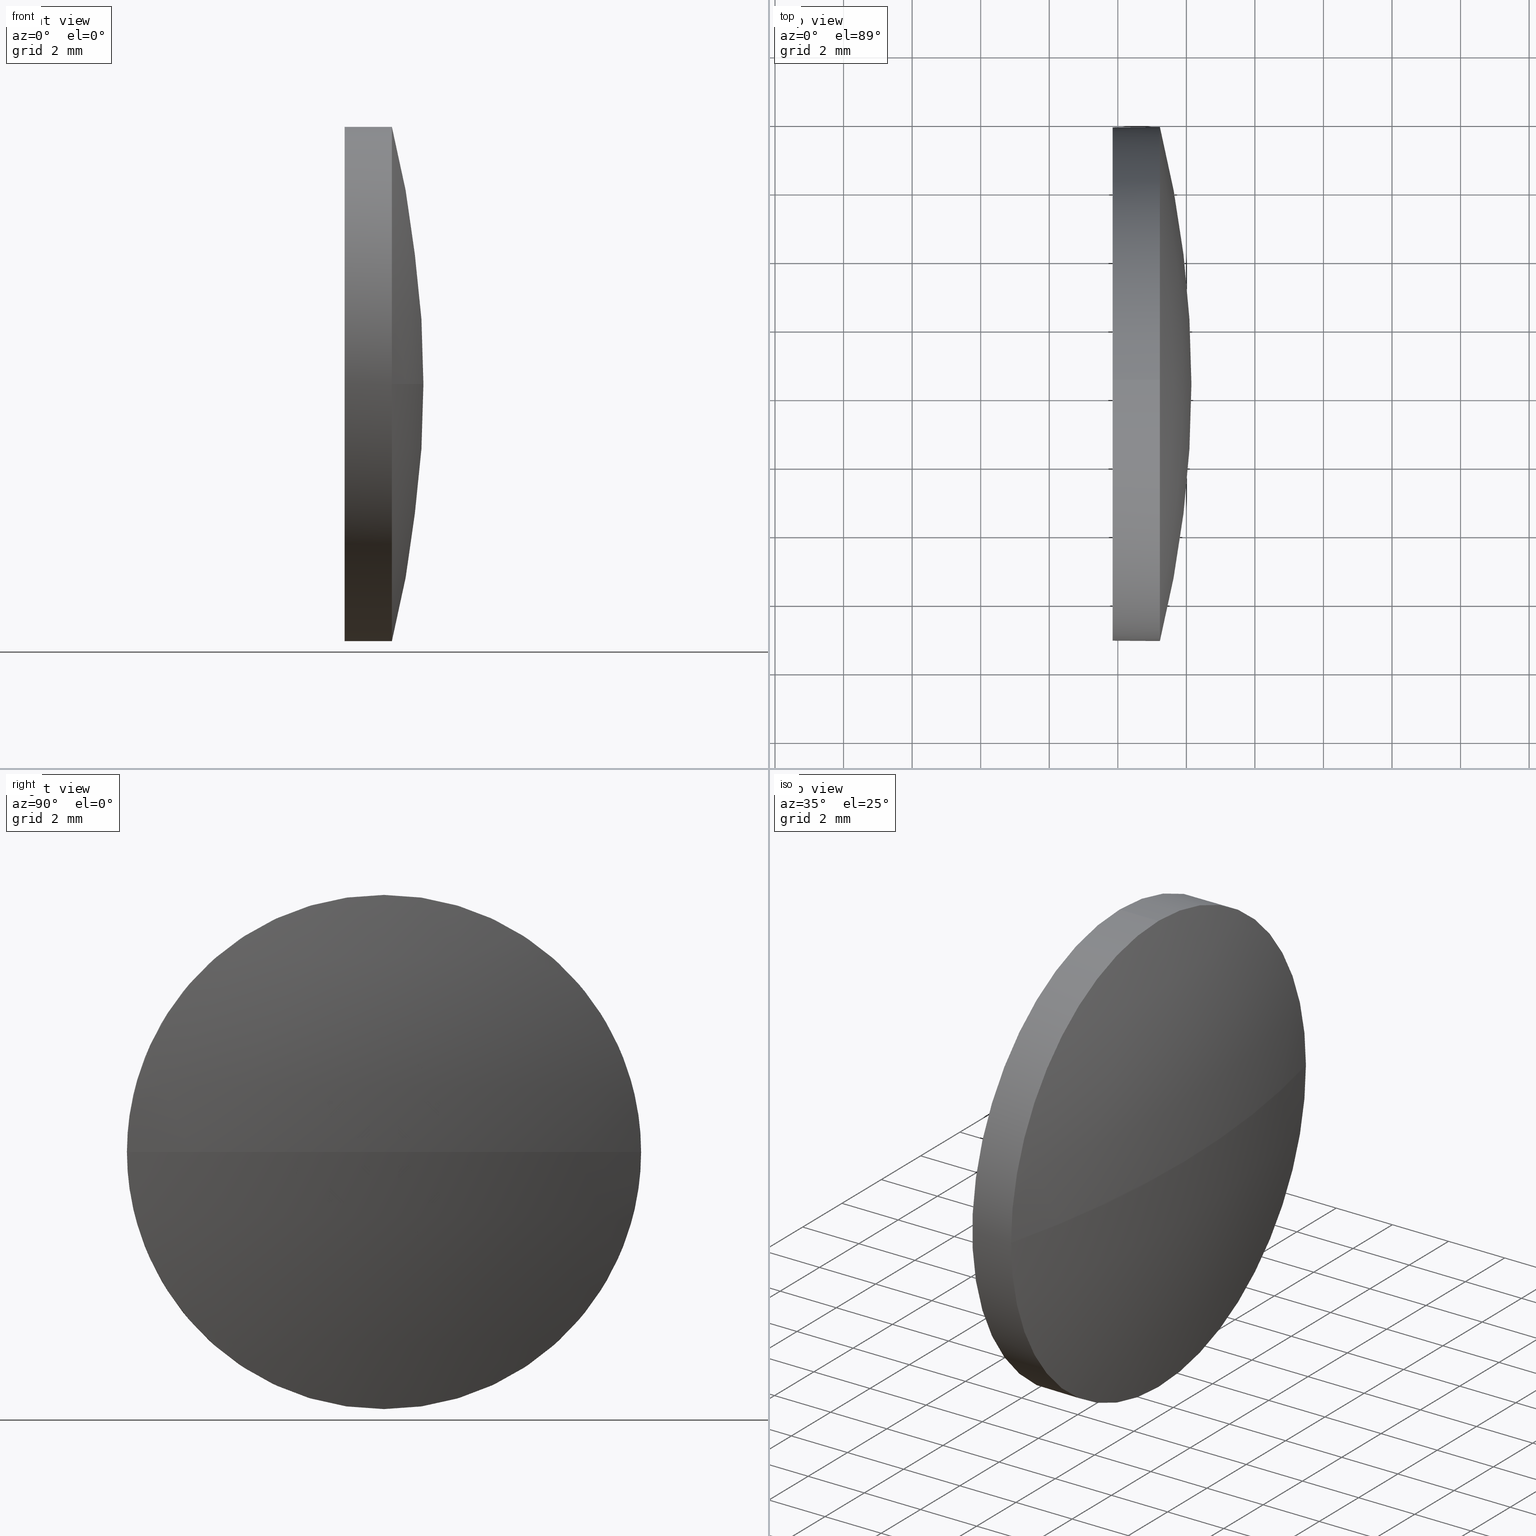
[diagram: canonical four-view strip — front | top / right | iso, engineering-drawing reading convention]
A machine part, canonical four-view strip (front | top / right | iso — engineering-drawing reading convention). The complete STEP part file that produces these views, byte-faithful:
ISO-10303-21;
HEADER;
FILE_DESCRIPTION (( 'STEP AP214' ),
    '1' );
FILE_NAME ('100196.STEP',
    '2019-05-22T02:11:12',
    ( '' ),
    ( '' ),
    'SwSTEP 2.0',
    'SolidWorks 2016',
    '' );
FILE_SCHEMA (( 'AUTOMOTIVE_DESIGN' ));
ENDSEC;

DATA;
#1 = CIRCLE ( 'NONE', #30, 31.03065217391317500 ) ;
#2 = ORIENTED_EDGE ( 'NONE', *, *, #118, .T. ) ;
#3 = PRODUCT_DEFINITION_CONTEXT ( 'detailed design', #74, 'design' ) ;
#4 = SURFACE_STYLE_FILL_AREA ( #48 ) ;
#5 = AXIS2_PLACEMENT_3D ( 'NONE', #13, #177, #39 ) ;
#6 =( NAMED_UNIT ( * ) PLANE_ANGLE_UNIT ( ) SI_UNIT ( $, .RADIAN. ) );
#7 = VERTEX_POINT ( 'NONE', #97 ) ;
#8 = ADVANCED_BREP_SHAPE_REPRESENTATION ( '100196', ( #180, #43 ), #139 ) ;
#9 = DIRECTION ( 'NONE',  ( -1.000000000000000000, -0.0000000000000000000, -0.0000000000000000000 ) ) ;
#10 =( LENGTH_UNIT ( ) NAMED_UNIT ( * ) SI_UNIT ( .MILLI., .METRE. ) );
#11 =( GEOMETRIC_REPRESENTATION_CONTEXT ( 3 ) GLOBAL_UNCERTAINTY_ASSIGNED_CONTEXT ( ( #66 ) ) GLOBAL_UNIT_ASSIGNED_CONTEXT ( ( #10, #185, #24 ) ) REPRESENTATION_CONTEXT ( 'NONE', 'WORKASPACE' ) );
#12 = VERTEX_POINT ( 'NONE', #99 ) ;
#13 = CARTESIAN_POINT ( 'NONE',  ( 559.8480030828359300, 70.35047557403802900, 0.0000000000000000000 ) ) ;
#14 = ORIENTED_EDGE ( 'NONE', *, *, #63, .T. ) ;
#15 = AXIS2_PLACEMENT_3D ( 'NONE', #34, #156, #154 ) ;
#16 = ORIENTED_EDGE ( 'NONE', *, *, #102, .F. ) ;
#17 = ORIENTED_EDGE ( 'NONE', *, *, #63, .F. ) ;
#18 = PRESENTATION_STYLE_ASSIGNMENT (( #181 ) ) ;
#19 = SURFACE_SIDE_STYLE ('',( #4 ) ) ;
#20 = AXIS2_PLACEMENT_3D ( 'NONE', #172, #114, #145 ) ;
#21 = DIRECTION ( 'NONE',  ( 0.0000000000000000000, 0.0000000000000000000, 1.000000000000000000 ) ) ;
#22 = DIRECTION ( 'NONE',  ( 0.0000000000000000000, 0.0000000000000000000, 1.000000000000000000 ) ) ;
#23 = AXIS2_PLACEMENT_3D ( 'NONE', #149, #175, #101 ) ;
#24 =( NAMED_UNIT ( * ) SI_UNIT ( $, .STERADIAN. ) SOLID_ANGLE_UNIT ( ) );
#25 = CARTESIAN_POINT ( 'NONE',  ( 531.1173509089227300, 70.35047557403817100, 0.0000000000000000000 ) ) ;
#26 = DIRECTION ( 'NONE',  ( -1.000000000000000000, -0.0000000000000000000, -0.0000000000000000000 ) ) ;
#27 = UNCERTAINTY_MEASURE_WITH_UNIT (LENGTH_MEASURE( 1.000000000000000100E-005 ), #107, 'distance_accuracy_value', 'NONE');
#28 = AXIS2_PLACEMENT_3D ( 'NONE', #150, #162, #105 ) ;
#29 =( LENGTH_UNIT ( ) NAMED_UNIT ( * ) SI_UNIT ( .MILLI., .METRE. ) );
#30 = AXIS2_PLACEMENT_3D ( 'NONE', #25, #173, #59 ) ;
#31 = LINE ( 'NONE', #120, #157 ) ;
#32 = CARTESIAN_POINT ( 'NONE',  ( 561.2280030828359300, 70.35047557403802900, 0.0000000000000000000 ) ) ;
#33 = DIRECTION ( 'NONE',  ( -1.000000000000000000, -0.0000000000000000000, -0.0000000000000000000 ) ) ;
#34 = CARTESIAN_POINT ( 'NONE',  ( 557.8048355037705100, 70.35047557403802900, 0.0000000000000000000 ) ) ;
#35 = CARTESIAN_POINT ( 'NONE',  ( 561.2280030828359300, 62.85047557403811400, 0.0000000000000000000 ) ) ;
#36 = CARTESIAN_POINT ( 'NONE',  ( 559.8480030828359300, 70.35047557403802900, 7.499999999999992900 ) ) ;
#37 = CIRCLE ( 'NONE', #28, 31.03065217391321100 ) ;
#38 = DIRECTION ( 'NONE',  ( 0.0000000000000000000, 0.0000000000000000000, 1.000000000000000000 ) ) ;
#39 = DIRECTION ( 'NONE',  ( 0.0000000000000000000, 0.0000000000000000000, 1.000000000000000000 ) ) ;
#40 = AXIS2_PLACEMENT_3D ( 'NONE', #42, #86, #38 ) ;
#41 = ORIENTED_EDGE ( 'NONE', *, *, #49, .T. ) ;
#42 = CARTESIAN_POINT ( 'NONE',  ( 561.2280030828359300, 70.35047557403802900, 0.0000000000000000000 ) ) ;
#43 = AXIS2_PLACEMENT_3D ( 'NONE', #75, #79, #93 ) ;
#44 = CIRCLE ( 'NONE', #5, 7.499999999999992900 ) ;
#45 = ADVANCED_FACE ( 'NONE', ( #92 ), #176, .T. ) ;
#46 = ORIENTED_EDGE ( 'NONE', *, *, #124, .T. ) ;
#47 = APPLICATION_PROTOCOL_DEFINITION ( 'draft international standard', 'automotive_design', 1998, #141 ) ;
#48 = FILL_AREA_STYLE ('',( #104 ) ) ;
#49 = EDGE_CURVE ( 'NONE', #57, #90, #131, .T. ) ;
#50 = ORIENTED_EDGE ( 'NONE', *, *, #49, .F. ) ;
#51 = PRESENTATION_LAYER_ASSIGNMENT (  '', '', ( #164 ) ) ;
#52 = VECTOR ( 'NONE', #183, 1000.000000000000000 ) ;
#53 = CARTESIAN_POINT ( 'NONE',  ( 559.8480030828359300, 70.35047557403802900, 0.0000000000000000000 ) ) ;
#54 = CARTESIAN_POINT ( 'NONE',  ( 557.8048355037705100, 70.35047557403802900, -7.499999999999992900 ) ) ;
#55 = PRODUCT_DEFINITION ( 'δ֪', '', #94, #3 ) ;
#56 = DIRECTION ( 'NONE',  ( 0.0000000000000000000, 0.0000000000000000000, 1.000000000000000000 ) ) ;
#57 = VERTEX_POINT ( 'NONE', #147 ) ;
#58 = CLOSED_SHELL ( 'NONE', ( #108, #45, #88, #62, #109 ) ) ;
#59 = DIRECTION ( 'NONE',  ( 0.0000000000000000000, -1.000000000000000000, -1.224646799147353200E-016 ) ) ;
#60 = ORIENTED_EDGE ( 'NONE', *, *, #68, .F. ) ;
#61 = COLOUR_RGB ( '',1.000000000000000000, 1.000000000000000000, 1.000000000000000000 ) ;
#62 = ADVANCED_FACE ( 'NONE', ( #167 ), #87, .T. ) ;
#63 = EDGE_CURVE ( 'NONE', #90, #98, #140, .T. ) ;
#64 = MECHANICAL_DESIGN_GEOMETRIC_PRESENTATION_REPRESENTATION (  '', ( #164 ), #11 ) ;
#65 = ORIENTED_EDGE ( 'NONE', *, *, #124, .F. ) ;
#66 = UNCERTAINTY_MEASURE_WITH_UNIT (LENGTH_MEASURE( 1.000000000000000100E-005 ), #10, 'distance_accuracy_value', 'NONE');
#67 = PRODUCT_RELATED_PRODUCT_CATEGORY ( 'part', '', ( #91 ) ) ;
#68 = EDGE_CURVE ( 'NONE', #96, #7, #143, .T. ) ;
#69 = FACE_OUTER_BOUND ( 'NONE', #136, .T. ) ;
#70 = STYLED_ITEM ( 'NONE', ( #18 ), #8 ) ;
#71 = FILL_AREA_STYLE ('',( #85 ) ) ;
#72 = AXIS2_PLACEMENT_3D ( 'NONE', #81, #148, #119 ) ;
#73 = CIRCLE ( 'NONE', #168, 7.499999999999992900 ) ;
#74 = APPLICATION_CONTEXT ( 'automotive_design' ) ;
#75 = CARTESIAN_POINT ( 'NONE',  ( 0.0000000000000000000, 0.0000000000000000000, 0.0000000000000000000 ) ) ;
#76 = CIRCLE ( 'NONE', #20, 7.499999999999992900 ) ;
#77 = AXIS2_PLACEMENT_3D ( 'NONE', #53, #9, #130 ) ;
#78 =( NAMED_UNIT ( * ) SI_UNIT ( $, .STERADIAN. ) SOLID_ANGLE_UNIT ( ) );
#79 = DIRECTION ( 'NONE',  ( 0.0000000000000000000, 0.0000000000000000000, 1.000000000000000000 ) ) ;
#80 = VERTEX_POINT ( 'NONE', #35 ) ;
#81 = CARTESIAN_POINT ( 'NONE',  ( 531.1173509089227300, 70.35047557403817100, 0.0000000000000000000 ) ) ;
#82 = PRESENTATION_LAYER_ASSIGNMENT (  '', '', ( #70 ) ) ;
#83 = SURFACE_STYLE_USAGE ( .BOTH. , #158 ) ;
#84 = ORIENTED_EDGE ( 'NONE', *, *, #127, .T. ) ;
#85 = FILL_AREA_STYLE_COLOUR ( '', #121 ) ;
#86 = DIRECTION ( 'NONE',  ( -1.000000000000000000, -0.0000000000000000000, -0.0000000000000000000 ) ) ;
#87 = CYLINDRICAL_SURFACE ( 'NONE', #89, 7.499999999999992900 ) ;
#88 = ADVANCED_FACE ( 'NONE', ( #171 ), #186, .T. ) ;
#89 = AXIS2_PLACEMENT_3D ( 'NONE', #146, #100, #22 ) ;
#90 = VERTEX_POINT ( 'NONE', #133 ) ;
#91 = PRODUCT ( '100196', '100196', '', ( #126 ) ) ;
#92 = FACE_OUTER_BOUND ( 'NONE', #166, .T. ) ;
#93 = DIRECTION ( 'NONE',  ( 1.000000000000000000, 0.0000000000000000000, 0.0000000000000000000 ) ) ;
#94 = PRODUCT_DEFINITION_FORMATION_WITH_SPECIFIED_SOURCE ( '�κ�', '', #91, .NOT_KNOWN. ) ;
#95 = ORIENTED_EDGE ( 'NONE', *, *, #118, .F. ) ;
#96 = VERTEX_POINT ( 'NONE', #132 ) ;
#97 = CARTESIAN_POINT ( 'NONE',  ( 561.2280030828359300, 77.85047557403810000, 9.184850993605065100E-016 ) ) ;
#98 = VERTEX_POINT ( 'NONE', #36 ) ;
#99 = CARTESIAN_POINT ( 'NONE',  ( 562.1480030828360000, 70.35047557403817100, 0.0000000000000000000 ) ) ;
#100 = DIRECTION ( 'NONE',  ( -1.000000000000000000, -0.0000000000000000000, -0.0000000000000000000 ) ) ;
#101 = DIRECTION ( 'NONE',  ( 0.0000000000000000000, 0.0000000000000000000, -1.000000000000000000 ) ) ;
#102 = EDGE_CURVE ( 'NONE', #7, #57, #76, .T. ) ;
#103 = ORIENTED_EDGE ( 'NONE', *, *, #170, .F. ) ;
#104 = FILL_AREA_STYLE_COLOUR ( '', #61 ) ;
#105 = DIRECTION ( 'NONE',  ( -1.000000000000000000, 0.0000000000000000000, 0.0000000000000000000 ) ) ;
#106 = ORIENTED_EDGE ( 'NONE', *, *, #102, .T. ) ;
#107 =( LENGTH_UNIT ( ) NAMED_UNIT ( * ) SI_UNIT ( .MILLI., .METRE. ) );
#108 = ADVANCED_FACE ( 'NONE', ( #69 ), #153, .T. ) ;
#109 = ADVANCED_FACE ( 'NONE', ( #123 ), #160, .F. ) ;
#110 =( NAMED_UNIT ( * ) PLANE_ANGLE_UNIT ( ) SI_UNIT ( $, .RADIAN. ) );
#111 = EDGE_CURVE ( 'NONE', #57, #80, #73, .T. ) ;
#112 = PRESENTATION_STYLE_ASSIGNMENT (( #83 ) ) ;
#113 = PRODUCT_DEFINITION_SHAPE ( 'NONE', 'NONE',  #55 ) ;
#114 = DIRECTION ( 'NONE',  ( -1.000000000000000000, -0.0000000000000000000, -0.0000000000000000000 ) ) ;
#115 = CARTESIAN_POINT ( 'NONE',  ( 531.1173509089227300, 70.35047557403817100, 0.0000000000000000000 ) ) ;
#116 = UNCERTAINTY_MEASURE_WITH_UNIT (LENGTH_MEASURE( 1.000000000000000100E-005 ), #29, 'distance_accuracy_value', 'NONE');
#117 = DIRECTION ( 'NONE',  ( 0.0000000000000000000, -1.000000000000000000, 0.0000000000000000000 ) ) ;
#118 = EDGE_CURVE ( 'NONE', #12, #7, #1, .T. ) ;
#119 = DIRECTION ( 'NONE',  ( 0.0000000000000000000, -1.000000000000000000, 0.0000000000000000000 ) ) ;
#120 = CARTESIAN_POINT ( 'NONE',  ( 557.8048355037705100, 70.35047557403802900, 7.499999999999992900 ) ) ;
#121 = COLOUR_RGB ( '',1.000000000000000000, 1.000000000000000000, 1.000000000000000000 ) ;
#122 = DIRECTION ( 'NONE',  ( -1.000000000000000000, -0.0000000000000000000, -0.0000000000000000000 ) ) ;
#123 = FACE_OUTER_BOUND ( 'NONE', #129, .T. ) ;
#124 = EDGE_CURVE ( 'NONE', #96, #98, #31, .T. ) ;
#125 = ORIENTED_EDGE ( 'NONE', *, *, #111, .F. ) ;
#126 = PRODUCT_CONTEXT ( 'NONE', #141, 'mechanical' ) ;
#127 = EDGE_CURVE ( 'NONE', #12, #80, #37, .T. ) ;
#128 = CIRCLE ( 'NONE', #40, 7.499999999999992900 ) ;
#129 = EDGE_LOOP ( 'NONE', ( #169, #14 ) ) ;
#130 = DIRECTION ( 'NONE',  ( 0.0000000000000000000, 0.0000000000000000000, 1.000000000000000000 ) ) ;
#131 = LINE ( 'NONE', #54, #52 ) ;
#132 = CARTESIAN_POINT ( 'NONE',  ( 561.2280030828359300, 70.35047557403802900, 7.499999999999992900 ) ) ;
#133 = CARTESIAN_POINT ( 'NONE',  ( 559.8480030828359300, 70.35047557403802900, -7.499999999999992900 ) ) ;
#134 = AXIS2_PLACEMENT_3D ( 'NONE', #32, #33, #155 ) ;
#135 = EDGE_LOOP ( 'NONE', ( #95, #84, #125, #16 ) ) ;
#136 = EDGE_LOOP ( 'NONE', ( #106, #41, #163, #65, #179 ) ) ;
#137 = CARTESIAN_POINT ( 'NONE',  ( 561.2280030828359300, 70.35047557403802900, 0.0000000000000000000 ) ) ;
#138 = EDGE_LOOP ( 'NONE', ( #50, #174, #165, #46, #17 ) ) ;
#139 =( GEOMETRIC_REPRESENTATION_CONTEXT ( 3 ) GLOBAL_UNCERTAINTY_ASSIGNED_CONTEXT ( ( #27 ) ) GLOBAL_UNIT_ASSIGNED_CONTEXT ( ( #107, #110, #78 ) ) REPRESENTATION_CONTEXT ( 'NONE', 'WORKASPACE' ) );
#140 = CIRCLE ( 'NONE', #77, 7.499999999999992900 ) ;
#141 = APPLICATION_CONTEXT ( 'automotive_design' ) ;
#142 = EDGE_CURVE ( 'NONE', #98, #90, #44, .T. ) ;
#143 = CIRCLE ( 'NONE', #134, 7.499999999999992900 ) ;
#144 =( NAMED_UNIT ( * ) SI_UNIT ( $, .STERADIAN. ) SOLID_ANGLE_UNIT ( ) );
#145 = DIRECTION ( 'NONE',  ( 0.0000000000000000000, 0.0000000000000000000, 1.000000000000000000 ) ) ;
#146 = CARTESIAN_POINT ( 'NONE',  ( 557.8048355037705100, 70.35047557403802900, 0.0000000000000000000 ) ) ;
#147 = CARTESIAN_POINT ( 'NONE',  ( 561.2280030828359300, 70.35047557403802900, -7.499999999999992900 ) ) ;
#148 = DIRECTION ( 'NONE',  ( 0.0000000000000000000, 0.0000000000000000000, 1.000000000000000000 ) ) ;
#149 = CARTESIAN_POINT ( 'NONE',  ( 559.8480030828359300, 70.35047557403802900, 0.0000000000000000000 ) ) ;
#150 = CARTESIAN_POINT ( 'NONE',  ( 531.1173509089227300, 70.35047557403817100, 0.0000000000000000000 ) ) ;
#151 = SURFACE_STYLE_FILL_AREA ( #71 ) ;
#152 = SHAPE_DEFINITION_REPRESENTATION ( #113, #8 ) ;
#153 = CYLINDRICAL_SURFACE ( 'NONE', #15, 7.499999999999992900 ) ;
#154 = DIRECTION ( 'NONE',  ( 0.0000000000000000000, 0.0000000000000000000, 1.000000000000000000 ) ) ;
#155 = DIRECTION ( 'NONE',  ( 0.0000000000000000000, 0.0000000000000000000, 1.000000000000000000 ) ) ;
#156 = DIRECTION ( 'NONE',  ( -1.000000000000000000, -0.0000000000000000000, -0.0000000000000000000 ) ) ;
#157 = VECTOR ( 'NONE', #26, 1000.000000000000000 ) ;
#158 = SURFACE_SIDE_STYLE ('',( #151 ) ) ;
#159 = AXIS2_PLACEMENT_3D ( 'NONE', #115, #21, #117 ) ;
#160 = PLANE ( 'NONE',  #23 ) ;
#161 = ORIENTED_EDGE ( 'NONE', *, *, #127, .F. ) ;
#162 = DIRECTION ( 'NONE',  ( 0.0000000000000000000, 0.0000000000000000000, -1.000000000000000000 ) ) ;
#163 = ORIENTED_EDGE ( 'NONE', *, *, #142, .F. ) ;
#164 = STYLED_ITEM ( 'NONE', ( #112 ), #180 ) ;
#165 = ORIENTED_EDGE ( 'NONE', *, *, #170, .T. ) ;
#166 = EDGE_LOOP ( 'NONE', ( #161, #2, #60, #103 ) ) ;
#167 = FACE_OUTER_BOUND ( 'NONE', #138, .T. ) ;
#168 = AXIS2_PLACEMENT_3D ( 'NONE', #137, #122, #56 ) ;
#169 = ORIENTED_EDGE ( 'NONE', *, *, #142, .T. ) ;
#170 = EDGE_CURVE ( 'NONE', #80, #96, #128, .T. ) ;
#171 = FACE_OUTER_BOUND ( 'NONE', #135, .T. ) ;
#172 = CARTESIAN_POINT ( 'NONE',  ( 561.2280030828359300, 70.35047557403802900, 0.0000000000000000000 ) ) ;
#173 = DIRECTION ( 'NONE',  ( 0.0000000000000000000, -1.224646799147353200E-016, 1.000000000000000000 ) ) ;
#174 = ORIENTED_EDGE ( 'NONE', *, *, #111, .T. ) ;
#175 = DIRECTION ( 'NONE',  ( 1.000000000000000000, 0.0000000000000000000, 0.0000000000000000000 ) ) ;
#176 = SPHERICAL_SURFACE ( 'NONE', #159, 31.03065217391317500 ) ;
#177 = DIRECTION ( 'NONE',  ( -1.000000000000000000, -0.0000000000000000000, -0.0000000000000000000 ) ) ;
#178 = MECHANICAL_DESIGN_GEOMETRIC_PRESENTATION_REPRESENTATION (  '', ( #70 ), #184 ) ;
#179 = ORIENTED_EDGE ( 'NONE', *, *, #68, .T. ) ;
#180 = MANIFOLD_SOLID_BREP ( '��ת1', #58 ) ;
#181 = SURFACE_STYLE_USAGE ( .BOTH. , #19 ) ;
#182 = APPLICATION_PROTOCOL_DEFINITION ( 'draft international standard', 'automotive_design', 1998, #74 ) ;
#183 = DIRECTION ( 'NONE',  ( -1.000000000000000000, -0.0000000000000000000, -0.0000000000000000000 ) ) ;
#184 =( GEOMETRIC_REPRESENTATION_CONTEXT ( 3 ) GLOBAL_UNCERTAINTY_ASSIGNED_CONTEXT ( ( #116 ) ) GLOBAL_UNIT_ASSIGNED_CONTEXT ( ( #29, #6, #144 ) ) REPRESENTATION_CONTEXT ( 'NONE', 'WORKASPACE' ) );
#185 =( NAMED_UNIT ( * ) PLANE_ANGLE_UNIT ( ) SI_UNIT ( $, .RADIAN. ) );
#186 = SPHERICAL_SURFACE ( 'NONE', #72, 31.03065217391317500 ) ;
ENDSEC;
END-ISO-10303-21;
